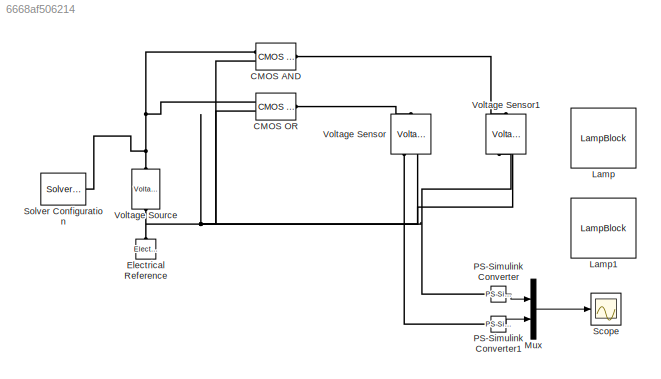
MODEL slx_6668af506214
KIND model
CONFIG AbsTol = auto
CONFIG EnableMultiTasking = off
CONFIG FixedStep = auto
CONFIG MaxStep = auto
CONFIG MinStep = auto
CONFIG RelTol = 1e-3
CONFIG SampleTimeConstraint = Unconstrained
CONFIG Solver = VariableStepAuto
CONFIG SolverName = VariableStepAuto
CONFIG StartTime = 0.0
CONFIG StopTime = 10.0
BLOCK [Reference] CMOS AND  REF=elec_lib/Integrated Circuits/Logic/CMOS AND
  Ports = [0, 0, 0, 0, 0, 2, 1]
  SourceBlock = elec_lib/Integrated Circuits/Logic/CMOS AND
  SourceProductBaseCode = SN
  SourceProductName = Simscape Electronics
  SourceType = CMOS AND
BLOCK [Reference] CMOS OR  REF=elec_lib/Integrated Circuits/Logic/CMOS OR
  Ports = [0, 0, 0, 0, 0, 2, 1]
  SourceBlock = elec_lib/Integrated Circuits/Logic/CMOS OR
  SourceProductBaseCode = SN
  SourceProductName = Simscape Electronics
  SourceType = CMOS OR
BLOCK [Reference] Electrical Reference  REF=fl_lib/Electrical/Electrical Elements/Electrical Reference
  Ports = [0, 0, 0, 0, 0, 1]
  SourceBlock = fl_lib/Electrical/Electrical Elements/Electrical Reference
  SourceProductBaseCode = SS
  SourceProductName = Simscape
  SourceType = Electrical Reference
BLOCK [LampBlock] Lamp
  WebBlockId = 13
BLOCK [LampBlock] Lamp1
  WebBlockId = 14
BLOCK [Mux] Mux
  DisplayOption = bar
  Inputs = 2
  Ports = [2, 1]
BLOCK [Reference] PS-Simulink Converter  REF=nesl_utility/PS-Simulink
Converter
  Ports = [0, 1, 0, 0, 0, 1]
  SourceBlock = nesl_utility/PS-Simulink\nConverter
  SourceProductBaseCode = SS
  SourceProductName = Simscape
  SourceType = PS-Simulink\nConverter
BLOCK [Reference] PS-Simulink Converter1  REF=nesl_utility/PS-Simulink
Converter
  Ports = [0, 1, 0, 0, 0, 1]
  SourceBlock = nesl_utility/PS-Simulink\nConverter
  SourceProductBaseCode = SS
  SourceProductName = Simscape
  SourceType = PS-Simulink\nConverter
BLOCK [Scope] Scope
  Floating = off
  NumInputPorts = 1
  Ports = [1]
  ScopeSpecificationString = Simulink.scopes.TimeScopeBlockCfg('CurrentConfiguration', extmgr.ConfigurationSet(extmgr.Configuration('Core','General UI',true),extmgr.Configuration('Core','Source UI',true),extmgr.Configuration('Sources','WiredSimulink',true),extmgr.Configuration('Visuals','Time Domain',true,'SerializedDisplays',{struct('MinYLimReal','-0.625','MaxYLimReal','5.625','YLabelReal','','MinYLimMag','0.00000','MaxYLimM...<+1383ch>
BLOCK [Reference] Solver Configuration  REF=nesl_utility/Solver
Configuration
  Ports = [0, 0, 0, 0, 0, 0, 1]
  SourceBlock = nesl_utility/Solver\nConfiguration
  SourceProductBaseCode = SS
  SourceProductName = Simscape
  SourceType = Solver\nConfiguration
BLOCK [Reference] Voltage Sensor  REF=fl_lib/Electrical/Electrical Sensors/Voltage Sensor
  Ports = [0, 0, 0, 0, 0, 1, 2]
  SourceBlock = fl_lib/Electrical/Electrical Sensors/Voltage Sensor
  SourceProductBaseCode = SS
  SourceProductName = Simscape
  SourceType = Voltage Sensor
BLOCK [Reference] Voltage Sensor1  REF=fl_lib/Electrical/Electrical Sensors/Voltage Sensor
  Ports = [0, 0, 0, 0, 0, 1, 2]
  SourceBlock = fl_lib/Electrical/Electrical Sensors/Voltage Sensor
  SourceProductBaseCode = SS
  SourceProductName = Simscape
  SourceType = Voltage Sensor
BLOCK [Reference] Voltage Source  REF=elec_lib/Sources/Voltage Source
  Ports = [0, 0, 0, 0, 0, 1, 1]
  SourceBlock = elec_lib/Sources/Voltage Source
  SourceProductBaseCode = SN
  SourceProductName = Simscape Electronics
  SourceType = Voltage Source
LINE Mux:1 -> Scope:1
LINE PS-Simulink Converter1:1 -> Mux:2
LINE PS-Simulink Converter:1 -> Mux:1
PNET net1: CMOS AND:LConn1 -- CMOS OR:LConn1 -- Solver Configuration:RConn1 -- Voltage Source:LConn1
PNET net2: CMOS AND:LConn2 -- CMOS OR:LConn2 -- Electrical Reference:LConn1 -- Voltage Sensor1:RConn2 -- Voltage Sensor:RConn2 -- Voltage Source:RConn1
PLINE CMOS AND:RConn1 -- Voltage Sensor1:LConn1
PLINE CMOS OR:RConn1 -- Voltage Sensor:LConn1
PLINE PS-Simulink Converter1:LConn1 -- Voltage Sensor:RConn1
PLINE PS-Simulink Converter:LConn1 -- Voltage Sensor1:RConn1
note: PNET lines group multi-terminal physical nets as a canonical sorted terminal list (undirected conserving connections); 2-terminal nets keep the pairwise PLINE form
